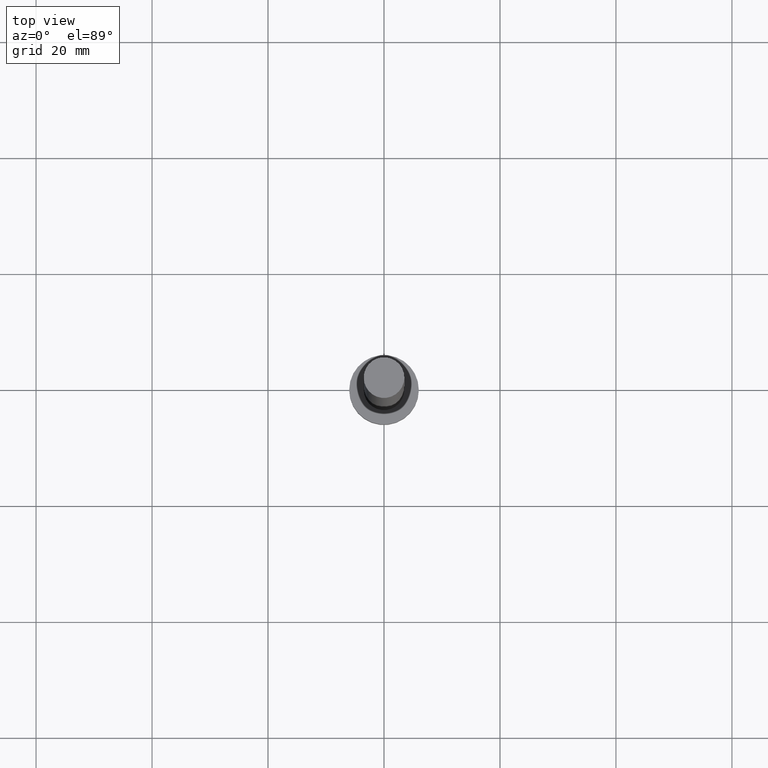
[diagram: clean part render]
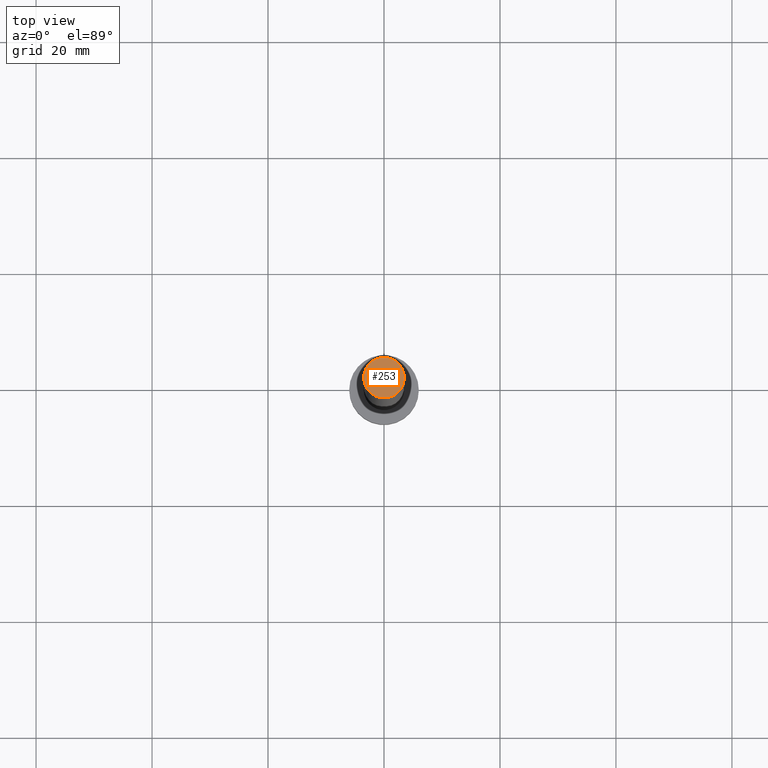
[diagram: same view with one face highlighted and labeled with its STEP entity id]
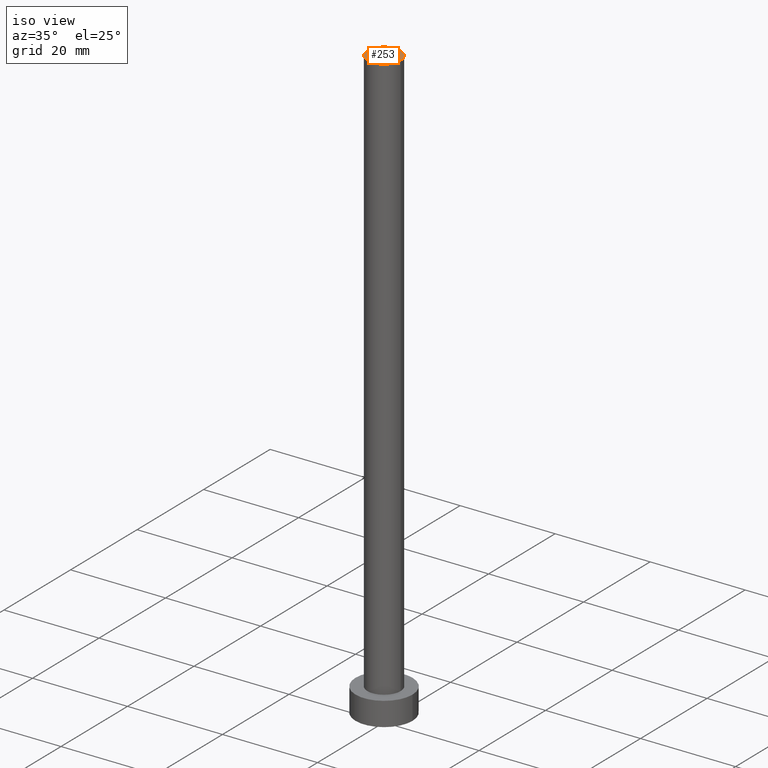
[diagram: same view with one face highlighted and labeled with its STEP entity id]
A machine part, top view. The second image highlights one B-rep face of the part: STEP entity #253.
A second angle (iso view) of the same face is appended — the face is thin or edge-on in the first view.
In plain terms, the highlighted planar face has unit normal (0, 0, 1).
Its self-contained STEP definition (entity closure, byte-faithful):
#4 = EDGE_LOOP ( 'NONE', ( #186, #8 ) ) ;
#8 = ORIENTED_EDGE ( 'NONE', *, *, #80, .T. ) ;
#13 = DIRECTION ( 'NONE',  ( 0.000000000000000000, 0.000000000000000000, 1.000000000000000000 ) ) ;
#27 = AXIS2_PLACEMENT_3D ( 'NONE', #240, #133, #71 ) ;
#61 = FACE_OUTER_BOUND ( 'NONE', #4, .T. ) ;
#63 = AXIS2_PLACEMENT_3D ( 'NONE', #188, #13, #94 ) ;
#64 = CARTESIAN_POINT ( 'NONE',  ( 0.000000000000000000, 0.000000000000000000, 125.0000000000000000 ) ) ;
#71 = DIRECTION ( 'NONE',  ( 1.000000000000000000, 0.000000000000000000, 0.000000000000000000 ) ) ;
#78 = CIRCLE ( 'NONE', #27, 3.500000000000000000 ) ;
#80 = EDGE_CURVE ( 'NONE', #108, #169, #78, .T. ) ;
#82 = DIRECTION ( 'NONE',  ( 0.000000000000000000, 0.000000000000000000, 1.000000000000000000 ) ) ;
#83 = CARTESIAN_POINT ( 'NONE',  ( 3.500000000000000000, 4.286263797015736595E-16, 125.0000000000000000 ) ) ;
#93 = EDGE_CURVE ( 'NONE', #169, #108, #128, .T. ) ;
#94 = DIRECTION ( 'NONE',  ( 1.000000000000000000, 0.000000000000000000, 0.000000000000000000 ) ) ;
#108 = VERTEX_POINT ( 'NONE', #83 ) ;
#128 = CIRCLE ( 'NONE', #63, 3.500000000000000000 ) ;
#133 = DIRECTION ( 'NONE',  ( 0.000000000000000000, 0.000000000000000000, 1.000000000000000000 ) ) ;
#138 = DIRECTION ( 'NONE',  ( 1.000000000000000000, 0.000000000000000000, -0.000000000000000000 ) ) ;
#158 = PLANE ( 'NONE',  #189 ) ;
#169 = VERTEX_POINT ( 'NONE', #171 ) ;
#171 = CARTESIAN_POINT ( 'NONE',  ( -3.500000000000000000, 0.000000000000000000, 125.0000000000000000 ) ) ;
#186 = ORIENTED_EDGE ( 'NONE', *, *, #93, .T. ) ;
#188 = CARTESIAN_POINT ( 'NONE',  ( 0.000000000000000000, 0.000000000000000000, 125.0000000000000000 ) ) ;
#189 = AXIS2_PLACEMENT_3D ( 'NONE', #64, #82, #138 ) ;
#240 = CARTESIAN_POINT ( 'NONE',  ( 0.000000000000000000, 0.000000000000000000, 125.0000000000000000 ) ) ;
#253 = ADVANCED_FACE ( 'NONE', ( #61 ), #158, .T. ) ;